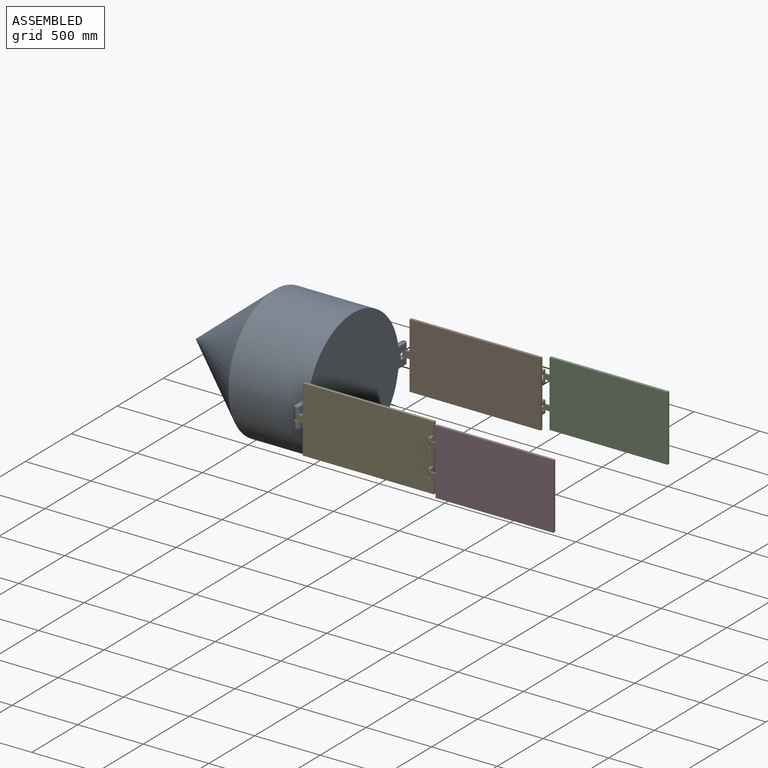
[diagram: assembled view]
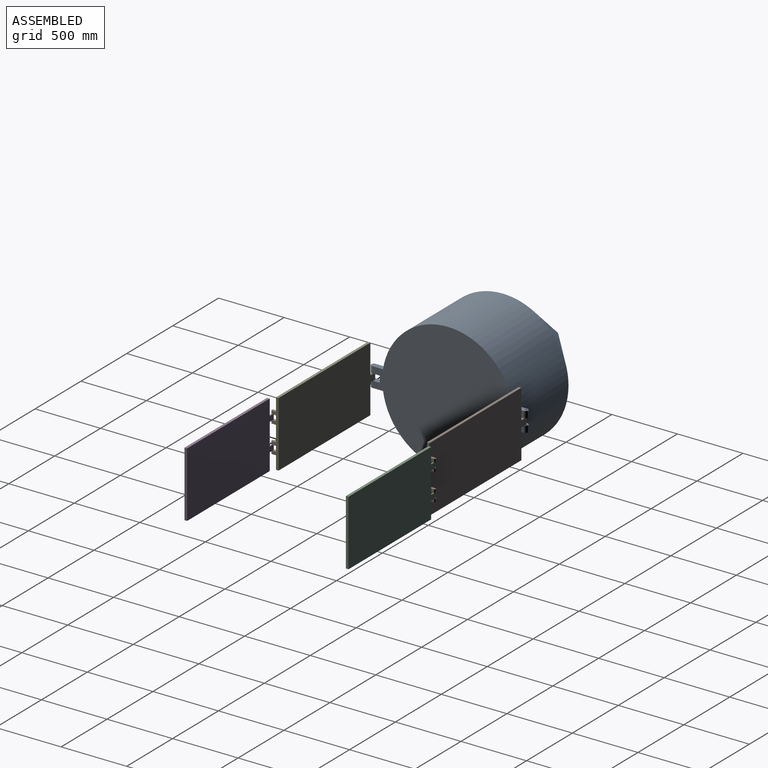
[diagram: assembled view, second angle]
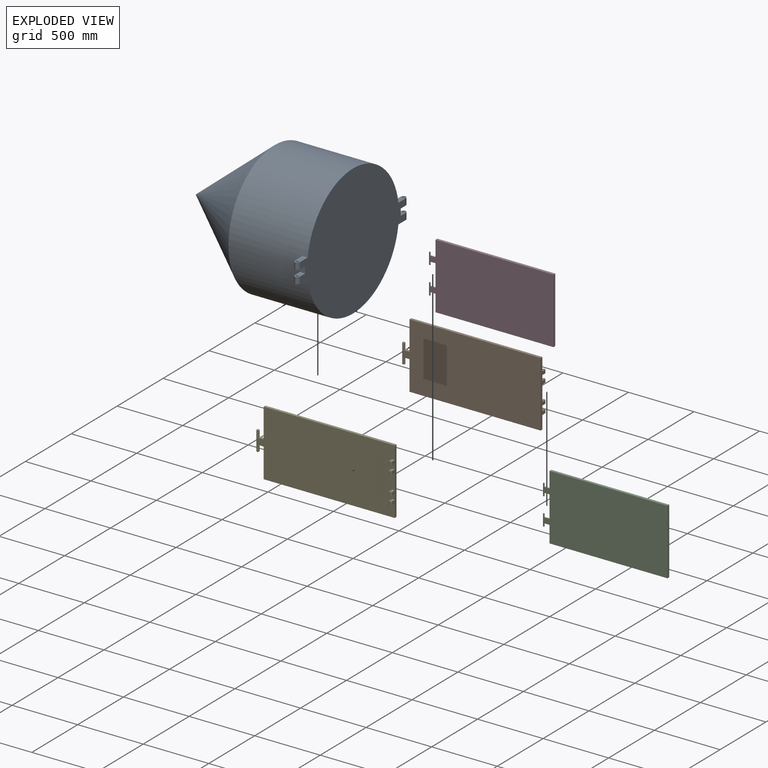
[diagram: exploded view]
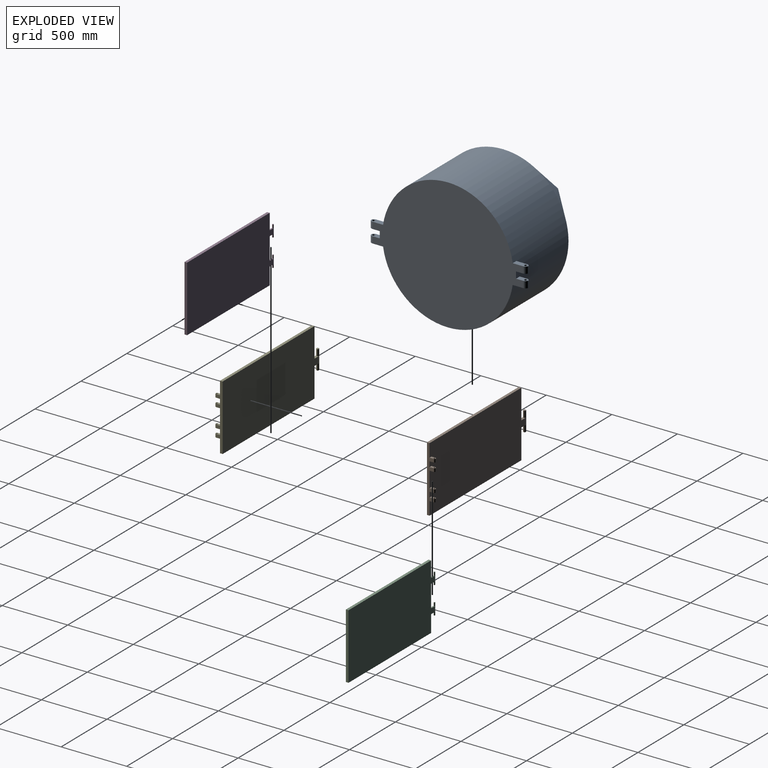
[diagram: exploded view, second angle]
ASSEMBLY  parts=5 mates=4
PART A: 27 faces, bbox 1200x1199x1000 mm
  f0: plane 1150x1000mm, normal (1,0,0), area 802962.6mm2, adj f5,f6,f7,f9,f10,f13,f14,f15
  f1: plane 150x80.66mm, normal (-1,0,0), area 8782.2mm2, adj f5,f6,f7,f16,f17,f18,f23,f26
  f2: cylinder r=10mm len=50mm, axis (0,0,1), area 3141.6mm2, adj f5,f17
  f3: cylinder r=10mm len=50mm, axis (0,0,1), area 3141.6mm2, adj f6,f18
  f4: cylinder r=10mm len=50mm, axis (0,0,1), area 3141.6mm2, adj f9,f14
  f5: plane 105.15x40mm, normal (0,0,-1), area 3645.5mm2, adj f0,f1,f2,f7,f25,f26
  f6: plane 105.15x40mm, normal (0,0,1), area 3645.5mm2, adj f0,f1,f3,f7,f23,f24
  f7: cylinder r=500mm len=1000mm, axis (-1,0,0), area 1872910.1mm2, adj f0,f1,f5,f6,f8,f9,f10,f11
  f8: cone r=500mm half-angle=39.8deg, axis (1,0,0), area 1226831.2mm2, adj f7
  f9: plane 105.15x40mm, normal (0,0,1), area 3645.5mm2, adj f0,f4,f7,f11,f21,f22
  f10: plane 105.15x40mm, normal (0,0,-1), area 3645.5mm2, adj f0,f7,f11,f12,f19,f20
  f11: plane 150x80.66mm, normal (-1,0,0), area 8782.2mm2, adj f7,f9,f10,f13,f14,f15,f20,f22
  f12: cylinder r=10mm len=50mm, axis (0,0,1), area 3141.6mm2, adj f10,f15
  f13: plane 50x40mm, normal (0,-1,0), area 2000mm2, adj f0,f11,f14,f15
  f14: plane 79.5x40mm, normal (0,0,-1), area 2619.3mm2, adj f0,f4,f11,f13,f21,f22
  f15: plane 79.5x40mm, normal (0,0,1), area 2619.3mm2, adj f0,f11,f12,f13,f19,f20
  f16: plane 50x40mm, normal (0,1,0), area 2000mm2, adj f0,f1,f17,f18
  f17: plane 79.5x40mm, normal (0,0,1), area 2619.3mm2, adj f0,f1,f2,f16,f25,f26
  f18: plane 79.5x40mm, normal (0,0,-1), area 2619.3mm2, adj f0,f1,f3,f16,f23,f24
  f19: cylinder r=25mm len=50mm, axis (0,0,-1), area 1711.8mm2, adj f0,f10,f15,f20
  f20: cylinder r=25mm len=50mm, axis (0,0,1), area 1711.8mm2, adj f10,f11,f15,f19
  f21: cylinder r=25mm len=50mm, axis (0,0,-1), area 1711.8mm2, adj f0,f9,f14,f22
  f22: cylinder r=25mm len=50mm, axis (0,0,1), area 1711.8mm2, adj f9,f11,f14,f21
  f23: cylinder r=25mm len=50mm, axis (0,0,-1), area 1711.8mm2, adj f1,f6,f18,f24
  f24: cylinder r=25mm len=50mm, axis (0,0,1), area 1711.8mm2, adj f0,f6,f18,f23
  f25: cylinder r=25mm len=50mm, axis (0,0,1), area 1711.8mm2, adj f0,f5,f17,f26
  f26: cylinder r=25mm len=50mm, axis (0,0,-1), area 1711.8mm2, adj f1,f5,f17,f25
PART B: 38 faces, bbox 1060x60x500 mm
  f0: plane 500x50mm, normal (1,0,0), area 13000mm2, adj f5,f6,f9,f14,f15,f16,f22,f24
  f1: plane 30x25mm, normal (-1,0,0), area 750mm2, adj f5,f9,f32,f36
  f2: plane 30x25mm, normal (-1,0,0), area 750mm2, adj f6,f9,f33,f35
  f3: cylinder r=5mm len=25mm, axis (0,0,1), area 785.4mm2, adj f5,f32
  f4: cylinder r=5mm len=25mm, axis (0,0,1), area 785.4mm2, adj f6,f33
  f5: plane 40x20mm, normal (0,0,-1), area 678.5mm2, adj f0,f1,f3,f9,f36,f37
  f6: plane 40x20mm, normal (0,0,1), area 678.5mm2, adj f0,f2,f4,f9,f34,f35
  f7: plane 30x25mm, normal (-1,0,0), area 750mm2, adj f9,f22,f26,f29
  f8: cylinder r=5mm len=25mm, axis (0,0,-1), area 785.4mm2, adj f22,f26
  f9: plane 1050x500mm, normal (0,1,0), area 500500mm2, adj f0,f1,f2,f5,f6,f7,f10,f11
  f10: plane 50x20mm, normal (0,0,-1), area 842.9mm2, adj f9,f13,f16,f17
  f11: plane 50x20mm, normal (0,0,1), area 842.9mm2, adj f9,f12,f16,f17
  f12: plane 225x20mm, normal (-1,0,0), area 4500mm2, adj f9,f11,f15,f16
  f13: plane 225x20mm, normal (-1,0,0), area 4500mm2, adj f9,f10,f14,f16
  f14: plane 1000x20mm, normal (0,0,-1), area 20000mm2, adj f0,f9,f13,f16
  f15: plane 1000x20mm, normal (0,0,1), area 20000mm2, adj f0,f9,f12,f16
  f16: plane 1050x500mm, normal (0,-1,0), area 502500mm2, adj f0,f10,f11,f12,f13,f14,f15,f17
  f17: cylinder r=10mm len=146mm, axis (0,0,-1), area 7602.7mm2, adj f9,f10,f11,f16,f20,f21
  f18: plane 16x16mm, normal (0,0,1), area 201.1mm2, adj f21
  f19: plane 16x16mm, normal (0,0,-1), area 201.1mm2, adj f20
  f20: cone r=10mm half-angle=45deg, axis (0,0,1), area 159.9mm2, adj f17,f19
  f21: cone r=8mm half-angle=45deg, axis (0,0,-1), area 159.9mm2, adj f17,f18
  f22: plane 40x20mm, normal (0,0,-1), area 678.5mm2, adj f0,f7,f8,f9,f28,f29
  f23: plane 30x25mm, normal (-1,0,0), area 750mm2, adj f9,f24,f27,f30
  f24: plane 40x20mm, normal (0,0,1), area 678.5mm2, adj f0,f9,f23,f25,f30,f31
  f25: cylinder r=5mm len=25mm, axis (0,0,-1), area 785.4mm2, adj f24,f27
  f26: plane 40x20mm, normal (0,0,1), area 678.5mm2, adj f0,f7,f8,f9,f28,f29
  f27: plane 40x20mm, normal (0,0,-1), area 678.5mm2, adj f0,f9,f23,f25,f30,f31
  f28: cylinder r=10mm len=25mm, axis (0,0,1), area 392.7mm2, adj f0,f22,f26,f29
  f29: cylinder r=10mm len=25mm, axis (0,0,-1), area 392.7mm2, adj f7,f22,f26,f28
  f30: cylinder r=10mm len=25mm, axis (0,0,-1), area 392.7mm2, adj f23,f24,f27,f31
  f31: cylinder r=10mm len=25mm, axis (0,0,1), area 392.7mm2, adj f0,f24,f27,f30
  f32: plane 40x20mm, normal (0,0,1), area 678.5mm2, adj f0,f1,f3,f9,f36,f37
  f33: plane 40x20mm, normal (0,0,-1), area 678.5mm2, adj f0,f2,f4,f9,f34,f35
  f34: cylinder r=10mm len=25mm, axis (0,0,-1), area 392.7mm2, adj f0,f6,f33,f35
  f35: cylinder r=10mm len=25mm, axis (0,0,-1), area 392.7mm2, adj f2,f6,f33,f34
  f36: cylinder r=10mm len=25mm, axis (0,0,-1), area 392.7mm2, adj f1,f5,f32,f37
  f37: cylinder r=10mm len=25mm, axis (0,0,-1), area 392.7mm2, adj f0,f5,f32,f36
PART C: 24 faces, bbox 955x20x500 mm
  f0: plane 50x10mm, normal (0,0,-1), area 460.7mm2, adj f2,f8,f9,f10
  f1: plane 50x10mm, normal (0,0,1), area 460.7mm2, adj f2,f8,f9,f10
  f2: plane 500x20mm, normal (-1,0,0), area 9200mm2, adj f0,f1,f3,f5,f6,f7,f8,f9
  f3: plane 900x20mm, normal (0,0,-1), area 18000mm2, adj f2,f4,f6,f7
  f4: plane 500x20mm, normal (1,0,0), area 10000mm2, adj f3,f5,f6,f7
  f5: plane 900x20mm, normal (0,0,1), area 18000mm2, adj f2,f4,f6,f7
  f6: plane 900x500mm, normal (0,-1,0), area 450000mm2, adj f2,f3,f4,f5
  f7: plane 900x500mm, normal (0,1,0), area 450000mm2, adj f2,f3,f4,f5
  f8: plane 50x40mm, normal (0,1,0), area 2000mm2, adj f0,f1,f2,f10
  f9: plane 50x40mm, normal (0,-1,0), area 2000mm2, adj f0,f1,f2,f10
  f10: cylinder r=5mm len=88mm, axis (0,0,-1), area 2136.3mm2, adj f0,f1,f8,f9,f22,f23
  f11: plane 8x8mm, normal (0,0,1), area 50.3mm2, adj f23
  f12: plane 8x8mm, normal (0,0,-1), area 50.3mm2, adj f22
  f13: plane 50x40mm, normal (0,1,0), area 2000mm2, adj f2,f14,f16,f17
  f14: plane 50x10mm, normal (0,0,-1), area 460.7mm2, adj f2,f13,f15,f17
  f15: plane 50x40mm, normal (0,-1,0), area 2000mm2, adj f2,f14,f16,f17
  f16: plane 50x10mm, normal (0,0,1), area 460.7mm2, adj f2,f13,f15,f17
  f17: cylinder r=5mm len=88mm, axis (0,0,1), area 2136.3mm2, adj f13,f14,f15,f16,f20,f21
  f18: plane 8x8mm, normal (0,0,-1), area 50.3mm2, adj f20
  f19: plane 8x8mm, normal (0,0,1), area 50.3mm2, adj f21
  f20: cone r=5mm half-angle=45deg, axis (0,0,1), area 40mm2, adj f17,f18
  f21: cone r=4mm half-angle=45deg, axis (0,0,-1), area 40mm2, adj f17,f19
  f22: cone r=5mm half-angle=45deg, axis (0,0,1), area 40mm2, adj f10,f12
  f23: cone r=4mm half-angle=45deg, axis (0,0,-1), area 40mm2, adj f10,f11
PART D: same geometry as C
PART E: same geometry as B
PLACE A at identity
PLACE B t=(535,575,0)mm
PLACE C t=(1525,615,0)mm
PLACE D t=(1520,-620,1)mm
PLACE E rot(axis=(1,0,0),180deg) t=(530,-580,0)mm
MATE revolute E.f3 <-> D.f10  axis (0,0,1) through (1020,-620,150)mm
MATE revolute C.f10 <-> B.f3  axis (0,0,1) through (1025,615,150)mm
MATE revolute B.f17 <-> A.f23  axis (0,0,1) through (-15,575,75)mm
MATE revolute E.f17 <-> A.f4  axis (0,0,1) through (-20,-580,75)mm
